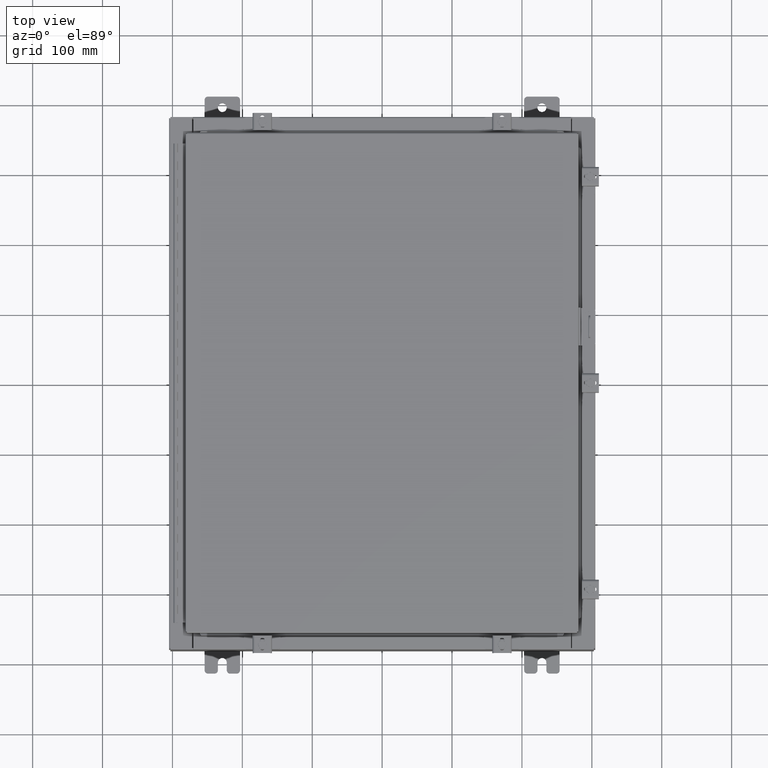
[diagram: clean part render]
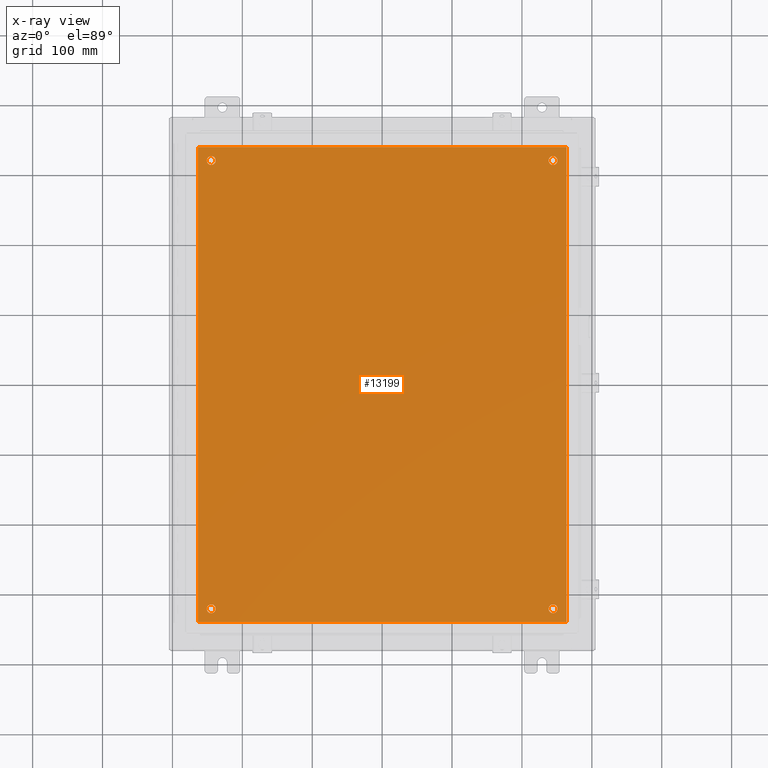
[diagram: x-ray — body ghosted, one internal face saturated and labeled with its STEP entity id]
A machine part, top view, then the same camera in x-ray: the body is ghosted and one INTERNAL B-rep face — a face not visible from any outside direction — is saturated and labeled: STEP entity #13199.
In plain terms, the highlighted planar face has unit normal (0, 0, -1).
Its self-contained STEP definition (entity closure, byte-faithful):
#136 = EDGE_CURVE ( 'NONE', #29253, #17580, #35532, .T. ) ;
#483 = EDGE_LOOP ( 'NONE', ( #503, #30847, #29539, #13885 ) ) ;
#503 = ORIENTED_EDGE ( 'NONE', *, *, #6764, .F. ) ;
#1314 = FACE_BOUND ( 'NONE', #33963, .T. ) ;
#1640 = DIRECTION ( 'NONE',  ( -1.000000000000000000, 0.0000000000000000000, 0.0000000000000000000 ) ) ;
#1711 = CIRCLE ( 'NONE', #21227, 0.2500000000000008900 ) ;
#1805 = CARTESIAN_POINT ( 'NONE',  ( -9.875000000000007100, -12.62500000000000000, -0.1039999999999999800 ) ) ;
#1897 = CARTESIAN_POINT ( 'NONE',  ( 9.875000000000007100, -12.62500000000000000, -0.1039999999999999800 ) ) ;
#2512 = DIRECTION ( 'NONE',  ( -1.000000000000000000, 0.0000000000000000000, 0.0000000000000000000 ) ) ;
#2684 = CIRCLE ( 'NONE', #8626, 0.2499999999999998100 ) ;
#2712 = CARTESIAN_POINT ( 'NONE',  ( -9.375000000000007100, -12.62500000000000000, -0.1039999999999999800 ) ) ;
#2914 = ORIENTED_EDGE ( 'NONE', *, *, #17609, .T. ) ;
#3900 = VECTOR ( 'NONE', #29004, 39.37007874015748100 ) ;
#5396 = CIRCLE ( 'NONE', #15656, 0.2500000000000008900 ) ;
#5806 = EDGE_CURVE ( 'NONE', #25742, #36364, #18601, .T. ) ;
#6764 = EDGE_CURVE ( 'NONE', #8850, #25178, #10881, .T. ) ;
#7797 = EDGE_LOOP ( 'NONE', ( #2914, #23561 ) ) ;
#8462 = DIRECTION ( 'NONE',  ( -0.0000000000000000000, -0.0000000000000000000, 1.000000000000000000 ) ) ;
#8626 = AXIS2_PLACEMENT_3D ( 'NONE', #15668, #35900, #18558 ) ;
#8662 = VERTEX_POINT ( 'NONE', #16820 ) ;
#8842 = AXIS2_PLACEMENT_3D ( 'NONE', #11931, #32125, #14849 ) ;
#8850 = VERTEX_POINT ( 'NONE', #35022 ) ;
#9051 = CARTESIAN_POINT ( 'NONE',  ( -10.50000000000000200, -13.38299999999999900, -0.1040000000000009100 ) ) ;
#9071 = CARTESIAN_POINT ( 'NONE',  ( 9.625000000000007100, 12.62500000000000000, -0.1039999999999999800 ) ) ;
#9139 = DIRECTION ( 'NONE',  ( -0.0000000000000000000, -0.0000000000000000000, 1.000000000000000000 ) ) ;
#9199 = CARTESIAN_POINT ( 'NONE',  ( 0.0000000000000000000, 0.0000000000000000000, -0.1039999999999999800 ) ) ;
#9351 = VERTEX_POINT ( 'NONE', #10458 ) ;
#10086 = CIRCLE ( 'NONE', #14851, 0.2499999999999998100 ) ;
#10165 = CARTESIAN_POINT ( 'NONE',  ( -9.375000000000007100, 12.62500000000000000, -0.1039999999999999800 ) ) ;
#10352 = EDGE_LOOP ( 'NONE', ( #17107, #30127 ) ) ;
#10458 = CARTESIAN_POINT ( 'NONE',  ( 9.875000000000007100, 12.62500000000000000, -0.1039999999999999800 ) ) ;
#10605 = CARTESIAN_POINT ( 'NONE',  ( 10.38300000000000100, 13.38299999999999700, -0.1040000000000009100 ) ) ;
#10881 = LINE ( 'NONE', #9051, #25323 ) ;
#11238 = VERTEX_POINT ( 'NONE', #10165 ) ;
#11399 = CARTESIAN_POINT ( 'NONE',  ( -9.625000000000007100, -12.62500000000000000, -0.1039999999999999800 ) ) ;
#11931 = CARTESIAN_POINT ( 'NONE',  ( -9.625000000000007100, 12.62500000000000000, -0.1039999999999999800 ) ) ;
#11993 = DIRECTION ( 'NONE',  ( -1.000000000000000000, 0.0000000000000000000, 0.0000000000000000000 ) ) ;
#11997 = CARTESIAN_POINT ( 'NONE',  ( 10.38300000000000100, -13.38299999999999700, -0.1040000000000009100 ) ) ;
#12000 = EDGE_LOOP ( 'NONE', ( #36870, #15119 ) ) ;
#12129 = DIRECTION ( 'NONE',  ( -1.000000000000000000, 0.0000000000000000000, -0.0000000000000000000 ) ) ;
#12455 = ORIENTED_EDGE ( 'NONE', *, *, #35522, .T. ) ;
#13199 = ADVANCED_FACE ( 'NONE', ( #25280, #16676, #32047, #1314, #31137 ), #23585, .T. ) ;
#13753 = VERTEX_POINT ( 'NONE', #1805 ) ;
#13885 = ORIENTED_EDGE ( 'NONE', *, *, #18832, .F. ) ;
#14286 = VECTOR ( 'NONE', #21478, 39.37007874015748100 ) ;
#14313 = DIRECTION ( 'NONE',  ( -1.000000000000000000, 0.0000000000000000000, 0.0000000000000000000 ) ) ;
#14410 = CARTESIAN_POINT ( 'NONE',  ( 10.50000000000000400, 13.38299999999999900, -0.1040000000000009100 ) ) ;
#14849 = DIRECTION ( 'NONE',  ( -1.000000000000000000, 0.0000000000000000000, 0.0000000000000000000 ) ) ;
#14851 = AXIS2_PLACEMENT_3D ( 'NONE', #9071, #29276, #11993 ) ;
#15119 = ORIENTED_EDGE ( 'NONE', *, *, #5806, .T. ) ;
#15656 = AXIS2_PLACEMENT_3D ( 'NONE', #37126, #19802, #2512 ) ;
#15668 = CARTESIAN_POINT ( 'NONE',  ( 9.625000000000007100, 12.62500000000000000, -0.1039999999999999800 ) ) ;
#16195 = DIRECTION ( 'NONE',  ( -0.0000000000000000000, -0.0000000000000000000, 1.000000000000000000 ) ) ;
#16676 = FACE_BOUND ( 'NONE', #12000, .T. ) ;
#16820 = CARTESIAN_POINT ( 'NONE',  ( 9.375000000000007100, 12.62500000000000000, -0.1039999999999999800 ) ) ;
#17107 = ORIENTED_EDGE ( 'NONE', *, *, #32610, .T. ) ;
#17377 = VECTOR ( 'NONE', #28368, 39.37007874015748100 ) ;
#17382 = CARTESIAN_POINT ( 'NONE',  ( -10.38300000000000100, 13.38299999999999700, -0.1040000000000020100 ) ) ;
#17580 = VERTEX_POINT ( 'NONE', #27946 ) ;
#17609 = EDGE_CURVE ( 'NONE', #18933, #13753, #25624, .T. ) ;
#18312 = EDGE_CURVE ( 'NONE', #17580, #8850, #26931, .T. ) ;
#18558 = DIRECTION ( 'NONE',  ( -1.000000000000000000, 0.0000000000000000000, 0.0000000000000000000 ) ) ;
#18601 = CIRCLE ( 'NONE', #26743, 0.2499999999999998100 ) ;
#18832 = EDGE_CURVE ( 'NONE', #25178, #29253, #25085, .T. ) ;
#18933 = VERTEX_POINT ( 'NONE', #2712 ) ;
#19050 = EDGE_CURVE ( 'NONE', #36364, #25742, #25511, .T. ) ;
#19802 = DIRECTION ( 'NONE',  ( -0.0000000000000000000, -0.0000000000000000000, 1.000000000000000000 ) ) ;
#21227 = AXIS2_PLACEMENT_3D ( 'NONE', #33498, #16195, #36418 ) ;
#21478 = DIRECTION ( 'NONE',  ( -1.000000000000000000, -0.0000000000000000000, -0.0000000000000000000 ) ) ;
#21631 = CARTESIAN_POINT ( 'NONE',  ( -9.875000000000007100, 12.62500000000000000, -0.1039999999999999800 ) ) ;
#22029 = ORIENTED_EDGE ( 'NONE', *, *, #36520, .T. ) ;
#23561 = ORIENTED_EDGE ( 'NONE', *, *, #28530, .T. ) ;
#23585 = PLANE ( 'NONE',  #36530 ) ;
#24377 = VERTEX_POINT ( 'NONE', #21631 ) ;
#25085 = LINE ( 'NONE', #25447, #17377 ) ;
#25178 = VERTEX_POINT ( 'NONE', #11997 ) ;
#25280 = FACE_BOUND ( 'NONE', #7797, .T. ) ;
#25323 = VECTOR ( 'NONE', #32166, 39.37007874015748100 ) ;
#25447 = CARTESIAN_POINT ( 'NONE',  ( 10.38300000000000100, -13.38299999999999700, -0.1040000000000009100 ) ) ;
#25511 = CIRCLE ( 'NONE', #32276, 0.2499999999999998100 ) ;
#25624 = CIRCLE ( 'NONE', #35910, 0.2500000000000008900 ) ;
#25742 = VERTEX_POINT ( 'NONE', #26734 ) ;
#26137 = CARTESIAN_POINT ( 'NONE',  ( 9.625000000000007100, -12.62500000000000000, -0.1039999999999999800 ) ) ;
#26445 = CARTESIAN_POINT ( 'NONE',  ( 9.625000000000007100, -12.62500000000000000, -0.1039999999999999800 ) ) ;
#26734 = CARTESIAN_POINT ( 'NONE',  ( 9.375000000000007100, -12.62500000000000000, -0.1039999999999999800 ) ) ;
#26743 = AXIS2_PLACEMENT_3D ( 'NONE', #26137, #8462, #1640 ) ;
#26931 = LINE ( 'NONE', #17382, #3900 ) ;
#27946 = CARTESIAN_POINT ( 'NONE',  ( -10.38300000000000100, 13.38299999999999700, -0.1040000000000020100 ) ) ;
#28368 = DIRECTION ( 'NONE',  ( 0.0000000000000000000, 1.000000000000000000, 0.0000000000000000000 ) ) ;
#28530 = EDGE_CURVE ( 'NONE', #13753, #18933, #1711, .T. ) ;
#29004 = DIRECTION ( 'NONE',  ( 0.0000000000000000000, -1.000000000000000000, 0.0000000000000000000 ) ) ;
#29253 = VERTEX_POINT ( 'NONE', #10605 ) ;
#29276 = DIRECTION ( 'NONE',  ( -0.0000000000000000000, -0.0000000000000000000, 1.000000000000000000 ) ) ;
#29345 = DIRECTION ( 'NONE',  ( -1.000000000000000000, 0.0000000000000000000, 0.0000000000000000000 ) ) ;
#29401 = DIRECTION ( 'NONE',  ( 0.0000000000000000000, 0.0000000000000000000, -1.000000000000000000 ) ) ;
#29539 = ORIENTED_EDGE ( 'NONE', *, *, #136, .F. ) ;
#30127 = ORIENTED_EDGE ( 'NONE', *, *, #36222, .T. ) ;
#30847 = ORIENTED_EDGE ( 'NONE', *, *, #18312, .F. ) ;
#31137 = FACE_OUTER_BOUND ( 'NONE', #483, .T. ) ;
#31586 = DIRECTION ( 'NONE',  ( -0.0000000000000000000, -0.0000000000000000000, 1.000000000000000000 ) ) ;
#32047 = FACE_BOUND ( 'NONE', #10352, .T. ) ;
#32125 = DIRECTION ( 'NONE',  ( -0.0000000000000000000, -0.0000000000000000000, 1.000000000000000000 ) ) ;
#32166 = DIRECTION ( 'NONE',  ( 1.000000000000000000, -0.0000000000000000000, -0.0000000000000000000 ) ) ;
#32276 = AXIS2_PLACEMENT_3D ( 'NONE', #26445, #9139, #29345 ) ;
#32610 = EDGE_CURVE ( 'NONE', #9351, #8662, #10086, .T. ) ;
#33498 = CARTESIAN_POINT ( 'NONE',  ( -9.625000000000007100, -12.62500000000000000, -0.1039999999999999800 ) ) ;
#33963 = EDGE_LOOP ( 'NONE', ( #22029, #12455 ) ) ;
#35022 = CARTESIAN_POINT ( 'NONE',  ( -10.38300000000000100, -13.38299999999999900, -0.1040000000000009100 ) ) ;
#35298 = CIRCLE ( 'NONE', #8842, 0.2500000000000008900 ) ;
#35522 = EDGE_CURVE ( 'NONE', #24377, #11238, #35298, .T. ) ;
#35532 = LINE ( 'NONE', #14410, #14286 ) ;
#35900 = DIRECTION ( 'NONE',  ( -0.0000000000000000000, -0.0000000000000000000, 1.000000000000000000 ) ) ;
#35910 = AXIS2_PLACEMENT_3D ( 'NONE', #11399, #31586, #14313 ) ;
#36222 = EDGE_CURVE ( 'NONE', #8662, #9351, #2684, .T. ) ;
#36364 = VERTEX_POINT ( 'NONE', #1897 ) ;
#36418 = DIRECTION ( 'NONE',  ( -1.000000000000000000, 0.0000000000000000000, 0.0000000000000000000 ) ) ;
#36520 = EDGE_CURVE ( 'NONE', #11238, #24377, #5396, .T. ) ;
#36530 = AXIS2_PLACEMENT_3D ( 'NONE', #9199, #29401, #12129 ) ;
#36870 = ORIENTED_EDGE ( 'NONE', *, *, #19050, .T. ) ;
#37126 = CARTESIAN_POINT ( 'NONE',  ( -9.625000000000007100, 12.62500000000000000, -0.1039999999999999800 ) ) ;